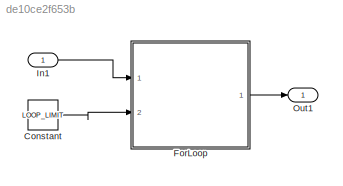
MODEL slx_de10ce2f653b
KIND model
CONFIG AbsTol = auto
CONFIG FixedStep = auto
CONFIG MaxStep = auto
CONFIG MinStep = auto
CONFIG RelTol = 1e-3
CONFIG SampleTimeConstraint = Unconstrained
CONFIG Solver = ode3
CONFIG SolverMode = Auto
CONFIG SolverName = ode3
CONFIG StartTime = 0.0
CONFIG StopTime = 10.0
WORKSPACE source: MAT-file member
WORKSPACE MCOS: class17 (value not decoded)
BLOCK [Constant] Constant
  OutDataTypeStr = Inherit: Inherit via back propagation
  Value = LOOP_LIMIT
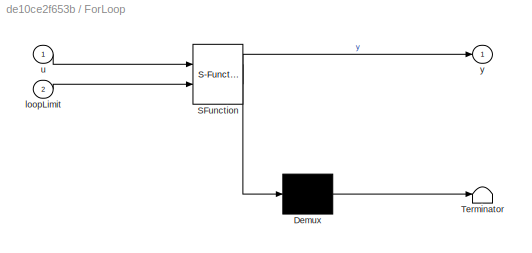
BLOCK [SubSystem] ForLoop
  ErrorFcn = Stateflow.Translate.translate
  PermitHierarchicalResolution = ExplicitOnly
  Ports = [2, 1]
  RequestExecContextInheritance = off
  SFBlockType = MATLAB Function
  TreatAsAtomicUnit = on
BLOCK [Demux] ForLoop/ Demux 
  Outputs = 1
  Ports = [1, 1]
BLOCK [S-Function] ForLoop/ SFunction 
  EnableBusSupport = on
  FunctionName = sf_sfun
  PortCounts = [2 2]
  Ports = [2, 2]
  Tag = Stateflow S-Function for_loop 2
BLOCK [Terminator] ForLoop/ Terminator 
BLOCK [Inport] ForLoop/loopLimit
  IconDisplay = Port number
  Port = 2
BLOCK [Inport] ForLoop/u
  IconDisplay = Port number
BLOCK [Outport] ForLoop/y
  IconDisplay = Port number
BLOCK [Inport] In1
  IconDisplay = Port number
BLOCK [Outport] Out1
  IconDisplay = Port number
LINE Constant:1 -> ForLoop:2
LINE ForLoop:1 -> Out1:1
LINE In1:1 -> ForLoop:1
CHART ForLoop states=1 transitions=1
  STATE_LABEL 'eML_blk_kernel()'
  STATE_LABEL 'SCRIPT:\nfunction y = fcn(u,loopLimit)\ny = u;\nfor i = 0:single(0.15):loopLimit\n    y = i*2+i^2;\nend'
